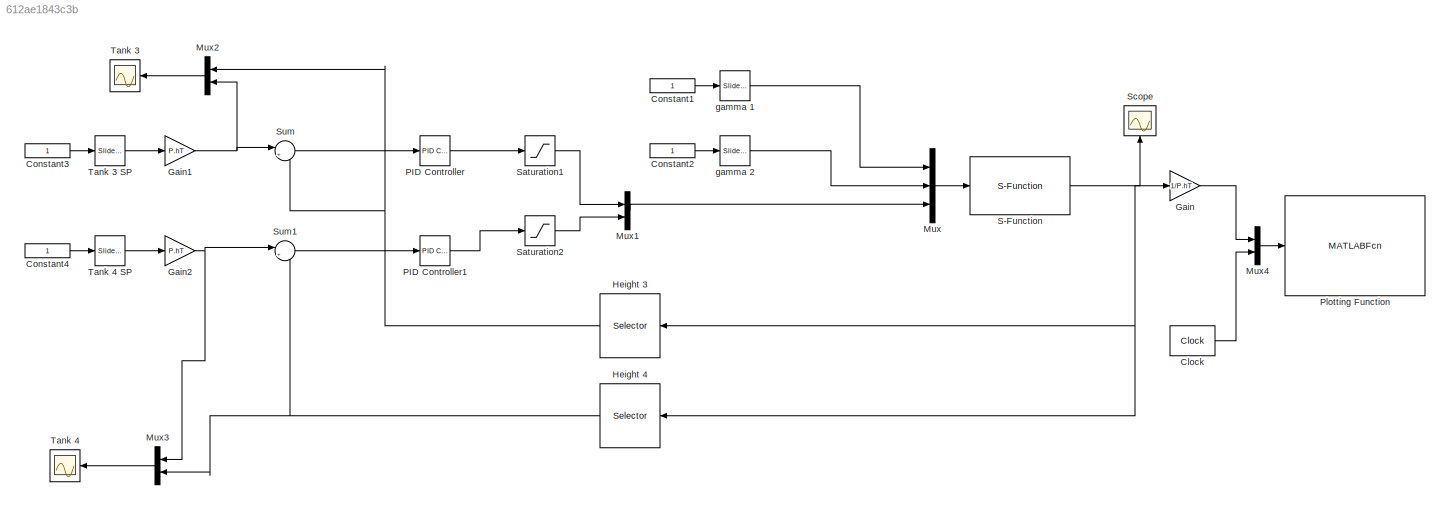
MODEL slx_612ae1843c3b
KIND model
CONFIG PreLoadFcn = simulation_consts;
BLOCK [Clock] Clock
  Decimation = 1
  DisplayTime = on
BLOCK [Constant] Constant1
BLOCK [Constant] Constant2
BLOCK [Constant] Constant3
BLOCK [Constant] Constant4
BLOCK [Gain] Gain
  Gain = 1/P.hT
  OutDataTypeStr = Inherit: Inherit via internal rule
  ParamDataTypeStr = Inherit: Inherit via internal rule
  SaturateOnIntegerOverflow = off
BLOCK [Gain] Gain1
  Gain = P.hT
  OutDataTypeStr = Inherit: Inherit via internal rule
  ParamDataTypeStr = Inherit: Inherit via internal rule
  SaturateOnIntegerOverflow = off
BLOCK [Gain] Gain2
  Gain = P.hT
  OutDataTypeStr = Inherit: Inherit via internal rule
  ParamDataTypeStr = Inherit: Inherit via internal rule
  SaturateOnIntegerOverflow = off
BLOCK [Selector] Height 3
  Indices = 3
  InputPortWidth = 4
  Ports = [1, 1]
BLOCK [Selector] Height 4
  Indices = 4
  InputPortWidth = 4
  Ports = [1, 1]
BLOCK [Mux] Mux
  DisplayOption = bar
  Inputs = 3
  Ports = [3, 1]
BLOCK [Mux] Mux1
  DisplayOption = bar
  Inputs = 2
  Ports = [2, 1]
BLOCK [Mux] Mux2
  DisplayOption = bar
  Inputs = 2
  Ports = [2, 1]
BLOCK [Mux] Mux3
  DisplayOption = bar
  Inputs = 2
  Ports = [2, 1]
BLOCK [Mux] Mux4
  DisplayOption = bar
  Inputs = 2
  Ports = [2, 1]
BLOCK [Reference] PID Controller  REF=simulink_need_slupdate/PID Controller
  D = 0
  I = .0015
  P = .1
  Ports = [1, 1]
  SourceBlock = simulink_need_slupdate/PID Controller
  SourceType = PID Controller
BLOCK [Reference] PID Controller1  REF=simulink_need_slupdate/PID Controller
  D = 0
  I = .0015
  P = .1
  Ports = [1, 1]
  SourceBlock = simulink_need_slupdate/PID Controller
  SourceType = PID Controller
BLOCK [MATLABFcn] Plotting Function
  MATLABFcn = simulation_plot_tanks(u)
  OutputDimensions = 0
  Ports = [1]
  SampleTime = 0.1
BLOCK [S-Function] S-Function
  EnableBusSupport = off
  FunctionName = simulation_tanks_dynamics
  Parameters = P
  Ports = [1, 1]
BLOCK [Saturate] Saturation1
  InputPortMap = u0
  LowerLimit = .001
  Ports = [1, 1]
  UpperLimit = 1
BLOCK [Saturate] Saturation2
  InputPortMap = u0
  LowerLimit = .001
  Ports = [1, 1]
  UpperLimit = 1
BLOCK [Scope] Scope
  DataFormat = StructureWithTime
  Floating = off
  NumInputPorts = 1
  Ports = [1]
  SampleTime = 0
  SaveName = ScopeData1
  ShowLegends = off
  YMax = 24
  YMin = 6
BLOCK [Sum] Sum
  IconShape = round
  InputSameDT = off
  Inputs = |+-
  OutDataTypeStr = Inherit: Inherit via internal rule
  Ports = [2, 1]
  SaturateOnIntegerOverflow = off
BLOCK [Sum] Sum1
  IconShape = round
  InputSameDT = off
  Inputs = |+-
  OutDataTypeStr = Inherit: Inherit via internal rule
  Ports = [2, 1]
  SaturateOnIntegerOverflow = off
BLOCK [Scope] Tank 3
  DataFormat = StructureWithTime
  Floating = off
  NumInputPorts = 1
  Ports = [1]
  SampleTime = 0
  ShowLegends = off
  TimeRange = 150
  YMax = 29
  YMin = 16
BLOCK [Reference] Tank 3 SP  REF=simulink/Math
Operations/Slider
Gain
  Ports = [1, 1]
  SourceBlock = simulink/Math\nOperations/Slider\nGain
  SourceType = Slider Gain
  gain = 0.5
  high = 1
  low = 0
BLOCK [Scope] Tank 4
  DataFormat = StructureWithTime
  Floating = off
  NumInputPorts = 1
  Ports = [1]
  SampleTime = 0
  SaveName = ScopeData2
  ShowLegends = off
  TimeRange = 150
  YMax = 29
  YMin = 16
BLOCK [Reference] Tank 4 SP  REF=simulink/Math
Operations/Slider
Gain
  Ports = [1, 1]
  SourceBlock = simulink/Math\nOperations/Slider\nGain
  SourceType = Slider Gain
  gain = 0.5
  high = 1
  low = 0
BLOCK [Reference] gamma 1  REF=simulink/Math
Operations/Slider
Gain
  Ports = [1, 1]
  SourceBlock = simulink/Math\nOperations/Slider\nGain
  SourceType = Slider Gain
  gain = 0.5
  high = 1
  low = 0
BLOCK [Reference] gamma 2  REF=simulink/Math
Operations/Slider
Gain
  Ports = [1, 1]
  SourceBlock = simulink/Math\nOperations/Slider\nGain
  SourceType = Slider Gain
  gain = 0.5
  high = 1
  low = 0
LINE Clock:1 -> Mux4:2
LINE Constant1:1 -> gamma 1:1
LINE Constant2:1 -> gamma 2:1
LINE Constant3:1 -> Tank 3 SP:1
LINE Constant4:1 -> Tank 4 SP:1
NET Gain1:1 -> Mux2:2, Sum:1
NET Gain2:1 -> Mux3:1, Sum1:1
LINE Gain:1 -> Mux4:1
NET Height 3:1 -> Mux2:1, Sum:2
NET Height 4:1 -> Mux3:2, Sum1:2
LINE Mux1:1 -> Mux:3
LINE Mux2:1 -> Tank 3:1
LINE Mux3:1 -> Tank 4:1
LINE Mux4:1 -> Plotting Function:1
LINE Mux:1 -> S-Function:1
LINE PID Controller1:1 -> Saturation2:1
LINE PID Controller:1 -> Saturation1:1
NET S-Function:1 -> Gain:1, Height 3:1, Height 4:1, Scope:1
LINE Saturation1:1 -> Mux1:1
LINE Saturation2:1 -> Mux1:2
LINE Sum1:1 -> PID Controller1:1
LINE Sum:1 -> PID Controller:1
LINE Tank 3 SP:1 -> Gain1:1
LINE Tank 4 SP:1 -> Gain2:1
LINE gamma 1:1 -> Mux:1
LINE gamma 2:1 -> Mux:2
note: NET lines group one-source signal fan-out (src -> all destinations, sorted); 1:1 wires keep LINE
